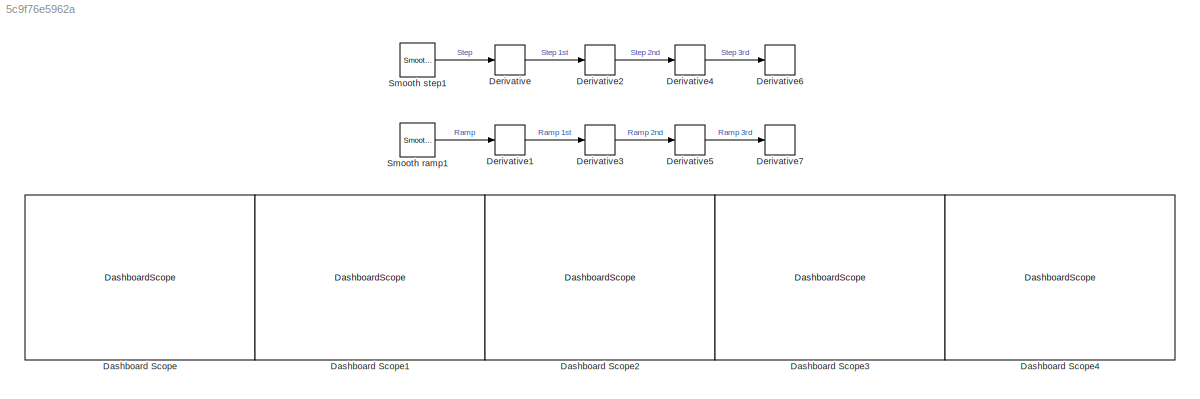
MODEL slx_5c9f76e5962a
KIND model
CONFIG AbsTol = auto
CONFIG EnableMultiTasking = off
CONFIG FixedStep = auto
CONFIG MaxStep = auto
CONFIG MinStep = auto
CONFIG RelTol = 1e-3
CONFIG SampleTimeConstraint = Unconstrained
CONFIG SolverName = VariableStepAuto
CONFIG StartTime = 0.0
CONFIG StopTime = 10.0
BLOCK [DashboardScope] Dashboard Scope
BLOCK [DashboardScope] Dashboard Scope1
BLOCK [DashboardScope] Dashboard Scope2
BLOCK [DashboardScope] Dashboard Scope3
BLOCK [DashboardScope] Dashboard Scope4
BLOCK [Derivative] Derivative
BLOCK [Derivative] Derivative1
BLOCK [Derivative] Derivative2
BLOCK [Derivative] Derivative3
BLOCK [Derivative] Derivative4
BLOCK [Derivative] Derivative5
BLOCK [Derivative] Derivative6
BLOCK [Derivative] Derivative7
BLOCK [Reference] Smooth ramp1  REF=ssrlib/Smooth ramp  (lib defined in slx_bfe8cb1c0a22)
  Ports = [0, 1]
  SourceBlock = ssrlib/Smooth ramp
BLOCK [Reference] Smooth step1  REF=ssrlib/Smooth step  (lib defined in slx_bfe8cb1c0a22)
  Ports = [0, 1]
  SourceBlock = ssrlib/Smooth step
LINE Derivative1:1 -> Derivative3:1
LINE Derivative2:1 -> Derivative4:1
LINE Derivative3:1 -> Derivative5:1
LINE Derivative4:1 -> Derivative6:1
LINE Derivative5:1 -> Derivative7:1
LINE Derivative:1 -> Derivative2:1
LINE Smooth ramp1:1 -> Derivative1:1
LINE Smooth step1:1 -> Derivative:1
